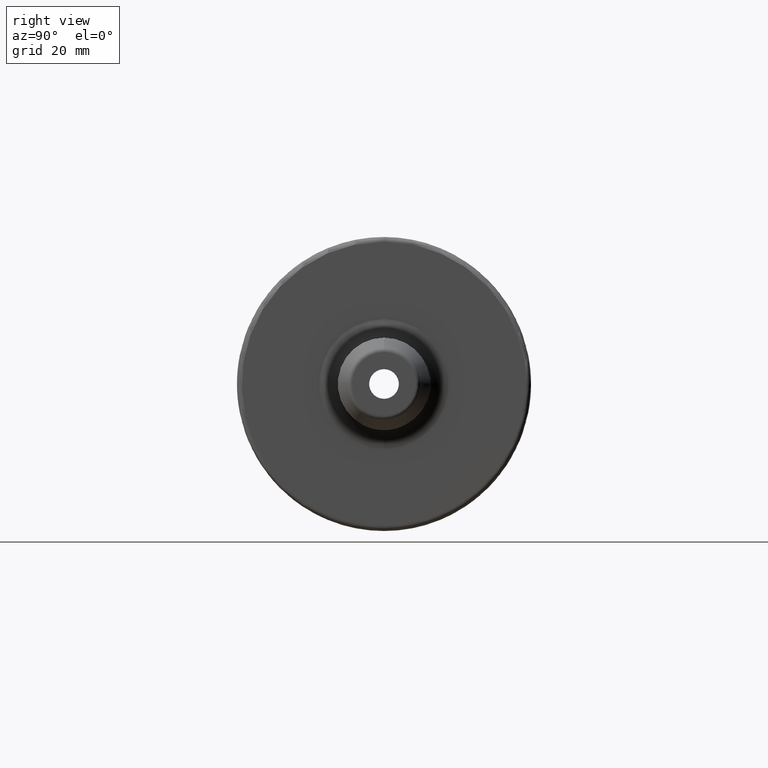
[diagram: clean part render]
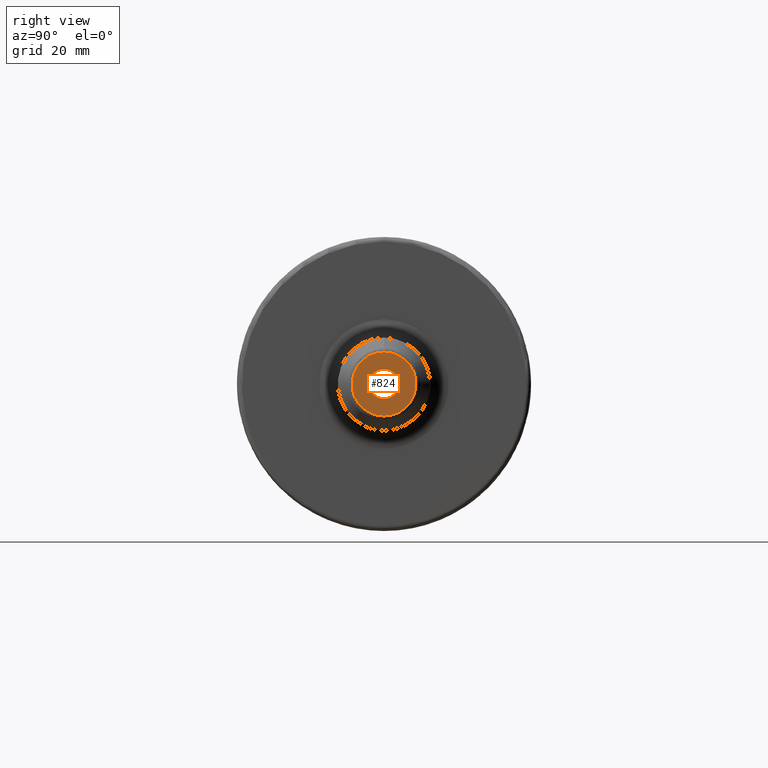
[diagram: same view with one face highlighted and labeled with its STEP entity id]
A machine part, right view. The second image highlights one B-rep face of the part: STEP entity #824.
In plain terms, the highlighted planar face has unit normal (1, 0, 0).
Its self-contained STEP definition (entity closure, byte-faithful):
#19=PLANE('',#903);
#54=FACE_BOUND('',#190,.T.);
#63=CIRCLE('',#899,6.86292973919251);
#66=CIRCLE('',#904,3.175);
#137=FACE_OUTER_BOUND('',#189,.T.);
#189=EDGE_LOOP('',(#587));
#190=EDGE_LOOP('',(#588));
#363=VERTEX_POINT('',#1490);
#365=VERTEX_POINT('',#1498);
#447=EDGE_CURVE('',#363,#363,#63,.T.);
#451=EDGE_CURVE('',#365,#365,#66,.T.);
#587=ORIENTED_EDGE('',*,*,#447,.F.);
#588=ORIENTED_EDGE('',*,*,#451,.T.);
#824=ADVANCED_FACE('',(#137,#54),#19,.T.);
#899=AXIS2_PLACEMENT_3D('',#1491,#1016,#1017);
#903=AXIS2_PLACEMENT_3D('',#1497,#1025,#1026);
#904=AXIS2_PLACEMENT_3D('',#1499,#1027,#1028);
#1016=DIRECTION('center_axis',(-1.,0.,0.));
#1017=DIRECTION('ref_axis',(0.,1.22464679914735E-16,1.));
#1025=DIRECTION('center_axis',(1.,0.,0.));
#1026=DIRECTION('ref_axis',(0.,0.,-1.));
#1027=DIRECTION('center_axis',(-1.,0.,0.));
#1028=DIRECTION('ref_axis',(0.,0.,-1.));
#1490=CARTESIAN_POINT('',(63.5,-8.40466493787529E-16,6.86292973919251));
#1491=CARTESIAN_POINT('Origin',(63.5,0.,0.));
#1497=CARTESIAN_POINT('Origin',(63.5,0.,6.65507257040218E-16));
#1498=CARTESIAN_POINT('',(63.5,-3.88825358729285E-16,3.175));
#1499=CARTESIAN_POINT('Origin',(63.5,0.,0.));